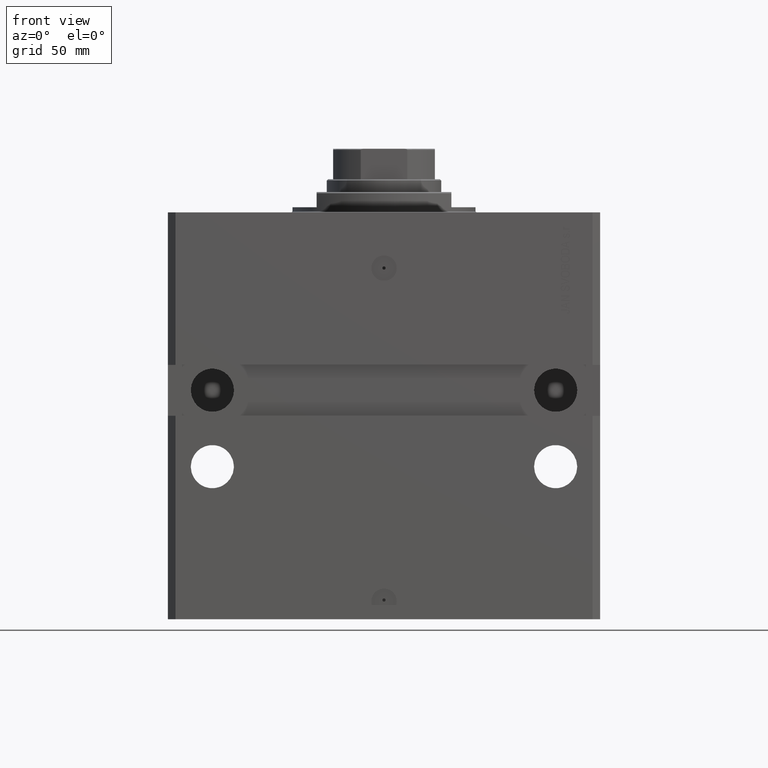
[diagram: clean part render]
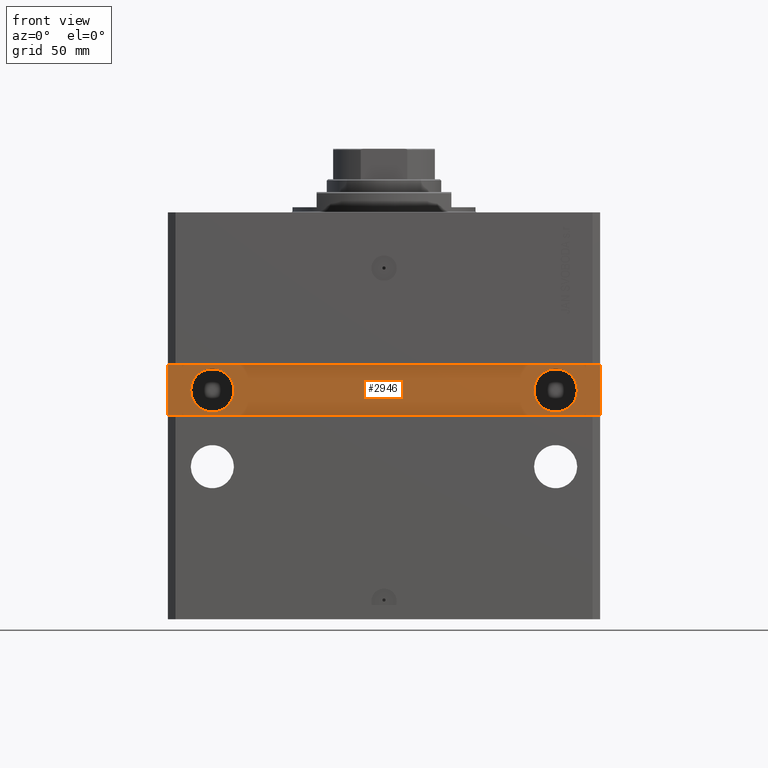
[diagram: same view with one face highlighted and labeled with its STEP entity id]
A machine part, front view. The second image highlights one B-rep face of the part: STEP entity #2946.
In plain terms, the highlighted planar face has unit normal (0, -1, 0).
Its self-contained STEP definition (entity closure, byte-faithful):
#37 = CIRCLE ( 'NONE', #37390, 8.500000000000000000 ) ;
#667 = AXIS2_PLACEMENT_3D ( 'NONE', #31378, #41893, #9854 ) ;
#1593 = FACE_BOUND ( 'NONE', #21888, .T. ) ;
#1816 = FACE_OUTER_BOUND ( 'NONE', #17224, .T. ) ;
#2128 = DIRECTION ( 'NONE',  ( -1.000000000000000000, -1.632680918566406300E-16, -2.449021377849609204E-16 ) ) ;
#2946 = ADVANCED_FACE ( 'NONE', ( #37125, #1593, #1816 ), #37356, .T. ) ;
#3953 = CARTESIAN_POINT ( 'NONE',  ( -67.49999999999997158, -65.00000000000001421, -70.00000000000001421 ) ) ;
#4878 = CARTESIAN_POINT ( 'NONE',  ( 76.00000000000002842, -64.99999999999998579, -70.00000000000000000 ) ) ;
#4990 = VERTEX_POINT ( 'NONE', #37807 ) ;
#5137 = DIRECTION ( 'NONE',  ( 1.000000000000000000, 0.000000000000000000, 0.000000000000000000 ) ) ;
#5879 = CARTESIAN_POINT ( 'NONE',  ( 85.00000000000001421, -64.99999999999998579, -80.00000000000001421 ) ) ;
#6084 = CARTESIAN_POINT ( 'NONE',  ( 85.00000000000001421, -64.99999999999998579, -59.99999999999998579 ) ) ;
#6408 = ORIENTED_EDGE ( 'NONE', *, *, #26841, .T. ) ;
#6486 = DIRECTION ( 'NONE',  ( 1.000000000000000000, 1.632680918566406300E-16, 0.000000000000000000 ) ) ;
#7425 = LINE ( 'NONE', #21230, #31314 ) ;
#7504 = VERTEX_POINT ( 'NONE', #33351 ) ;
#8283 = ORIENTED_EDGE ( 'NONE', *, *, #19504, .F. ) ;
#9854 = DIRECTION ( 'NONE',  ( 1.000000000000000000, 0.000000000000000000, 0.000000000000000000 ) ) ;
#10785 = ORIENTED_EDGE ( 'NONE', *, *, #22673, .T. ) ;
#10898 = AXIS2_PLACEMENT_3D ( 'NONE', #44362, #44138, #27072 ) ;
#12166 = DIRECTION ( 'NONE',  ( 1.041232428609250764E-16, -1.000000000000000000, -6.162975822039154730E-33 ) ) ;
#13252 = CIRCLE ( 'NONE', #39398, 8.500000000000000000 ) ;
#15473 = EDGE_LOOP ( 'NONE', ( #8283, #39403 ) ) ;
#16404 = LINE ( 'NONE', #34166, #31184 ) ;
#16483 = EDGE_CURVE ( 'NONE', #29068, #33381, #7425, .T. ) ;
#17224 = EDGE_LOOP ( 'NONE', ( #32374, #6408, #41339, #10785 ) ) ;
#18214 = DIRECTION ( 'NONE',  ( 1.000000000000000000, 0.000000000000000000, 0.000000000000000000 ) ) ;
#18675 = CARTESIAN_POINT ( 'NONE',  ( -67.49999999999997158, -65.00000000000001421, -70.00000000000001421 ) ) ;
#19054 = CARTESIAN_POINT ( 'NONE',  ( 85.00000000000001421, -64.99999999999998579, -80.00000000000001421 ) ) ;
#19504 = EDGE_CURVE ( 'NONE', #20652, #4990, #40993, .T. ) ;
#20652 = VERTEX_POINT ( 'NONE', #4878 ) ;
#20898 = VECTOR ( 'NONE', #36411, 1000.000000000000000 ) ;
#21230 = CARTESIAN_POINT ( 'NONE',  ( -85.00000000000001421, -65.00000000000001421, -80.00000000000001421 ) ) ;
#21888 = EDGE_LOOP ( 'NONE', ( #39531, #41719 ) ) ;
#22148 = LINE ( 'NONE', #40381, #20898 ) ;
#22673 = EDGE_CURVE ( 'NONE', #32458, #29068, #22148, .T. ) ;
#23584 = EDGE_CURVE ( 'NONE', #7504, #26440, #37, .T. ) ;
#24770 = DIRECTION ( 'NONE',  ( 1.101411730780568590E-16, -1.000000000000000000, 0.000000000000000000 ) ) ;
#25232 = DIRECTION ( 'NONE',  ( 1.101411730780568590E-16, -1.000000000000000000, 0.000000000000000000 ) ) ;
#25856 = CARTESIAN_POINT ( 'NONE',  ( -85.00000000000001421, -65.00000000000001421, -80.00000000000001421 ) ) ;
#26440 = VERTEX_POINT ( 'NONE', #28079 ) ;
#26841 = EDGE_CURVE ( 'NONE', #33381, #35859, #33561, .T. ) ;
#27072 = DIRECTION ( 'NONE',  ( 1.000000000000000000, 1.632680918566406300E-16, 0.000000000000000000 ) ) ;
#27425 = EDGE_CURVE ( 'NONE', #4990, #20652, #40834, .T. ) ;
#28079 = CARTESIAN_POINT ( 'NONE',  ( -58.99999999999997868, -65.00000000000001421, -70.00000000000001421 ) ) ;
#28546 = EDGE_CURVE ( 'NONE', #26440, #7504, #13252, .T. ) ;
#29068 = VERTEX_POINT ( 'NONE', #25856 ) ;
#29442 = DIRECTION ( 'NONE',  ( 1.000000000000000000, 0.000000000000000000, 0.000000000000000000 ) ) ;
#29646 = EDGE_CURVE ( 'NONE', #35859, #32458, #16404, .T. ) ;
#31184 = VECTOR ( 'NONE', #2128, 1000.000000000000000 ) ;
#31314 = VECTOR ( 'NONE', #6486, 1000.000000000000000 ) ;
#31359 = CARTESIAN_POINT ( 'NONE',  ( -85.00000000000001421, -65.00000000000001421, -60.00000000000002842 ) ) ;
#31378 = CARTESIAN_POINT ( 'NONE',  ( 67.50000000000002842, -64.99999999999998579, -70.00000000000000000 ) ) ;
#32374 = ORIENTED_EDGE ( 'NONE', *, *, #16483, .T. ) ;
#32458 = VERTEX_POINT ( 'NONE', #31359 ) ;
#32626 = AXIS2_PLACEMENT_3D ( 'NONE', #43943, #12166, #5137 ) ;
#33351 = CARTESIAN_POINT ( 'NONE',  ( -75.99999999999997158, -65.00000000000001421, -70.00000000000001421 ) ) ;
#33381 = VERTEX_POINT ( 'NONE', #5879 ) ;
#33561 = LINE ( 'NONE', #19054, #35631 ) ;
#34008 = DIRECTION ( 'NONE',  ( 0.000000000000000000, 0.000000000000000000, 1.000000000000000000 ) ) ;
#34166 = CARTESIAN_POINT ( 'NONE',  ( 85.00000000000001421, -64.99999999999998579, -59.99999999999998579 ) ) ;
#35631 = VECTOR ( 'NONE', #34008, 1000.000000000000000 ) ;
#35859 = VERTEX_POINT ( 'NONE', #6084 ) ;
#36411 = DIRECTION ( 'NONE',  ( 0.000000000000000000, 0.000000000000000000, -1.000000000000000000 ) ) ;
#37125 = FACE_BOUND ( 'NONE', #15473, .T. ) ;
#37356 = PLANE ( 'NONE',  #10898 ) ;
#37390 = AXIS2_PLACEMENT_3D ( 'NONE', #18675, #25232, #29442 ) ;
#37807 = CARTESIAN_POINT ( 'NONE',  ( 59.00000000000003553, -64.99999999999998579, -70.00000000000000000 ) ) ;
#39398 = AXIS2_PLACEMENT_3D ( 'NONE', #3953, #24770, #18214 ) ;
#39403 = ORIENTED_EDGE ( 'NONE', *, *, #27425, .F. ) ;
#39531 = ORIENTED_EDGE ( 'NONE', *, *, #28546, .F. ) ;
#40381 = CARTESIAN_POINT ( 'NONE',  ( -85.00000000000001421, -65.00000000000001421, -60.00000000000002842 ) ) ;
#40834 = CIRCLE ( 'NONE', #32626, 8.499999999999992895 ) ;
#40993 = CIRCLE ( 'NONE', #667, 8.499999999999992895 ) ;
#41339 = ORIENTED_EDGE ( 'NONE', *, *, #29646, .T. ) ;
#41719 = ORIENTED_EDGE ( 'NONE', *, *, #23584, .F. ) ;
#41893 = DIRECTION ( 'NONE',  ( 1.041232428609250764E-16, -1.000000000000000000, -6.162975822039154730E-33 ) ) ;
#43943 = CARTESIAN_POINT ( 'NONE',  ( 67.50000000000002842, -64.99999999999998579, -70.00000000000000000 ) ) ;
#44138 = DIRECTION ( 'NONE',  ( 1.632680918566406300E-16, -1.000000000000000000, 0.000000000000000000 ) ) ;
#44362 = CARTESIAN_POINT ( 'NONE',  ( 1.084072457370145048E-14, -65.00000000000000000, 0.000000000000000000 ) ) ;